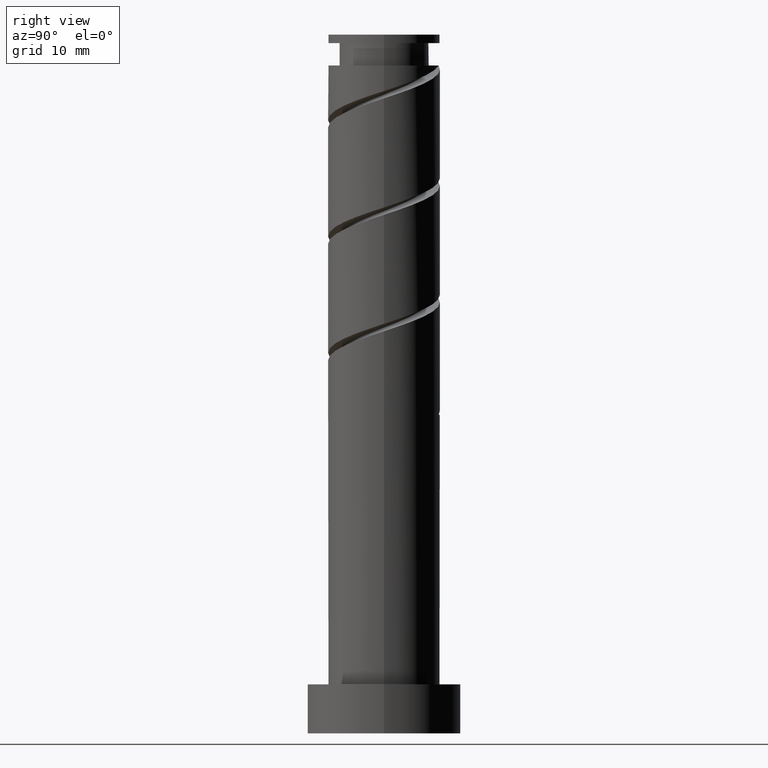
[diagram: clean part render]
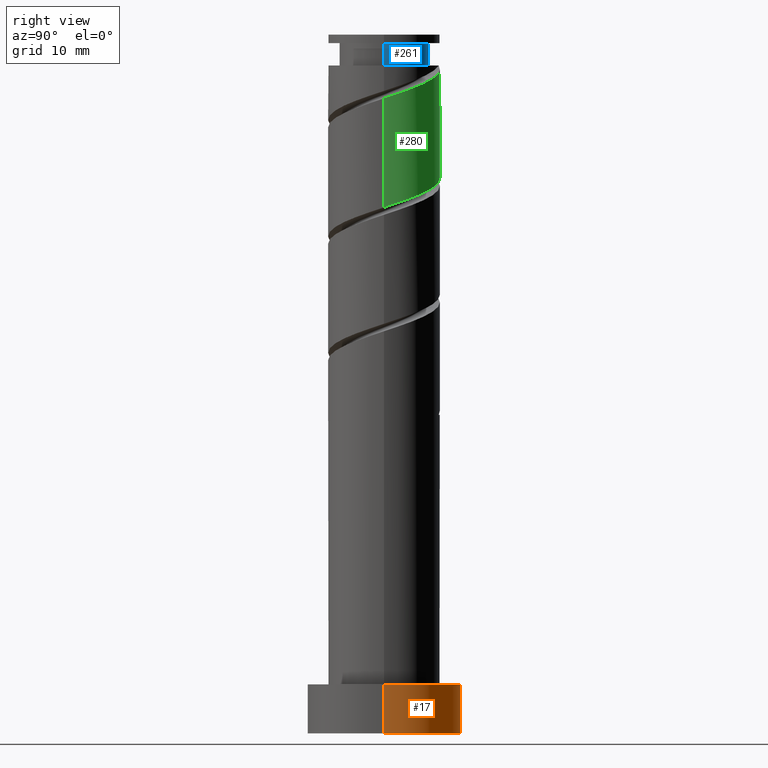
[diagram: same view with three faces highlighted in distinct colors, each labeled with its STEP entity id]
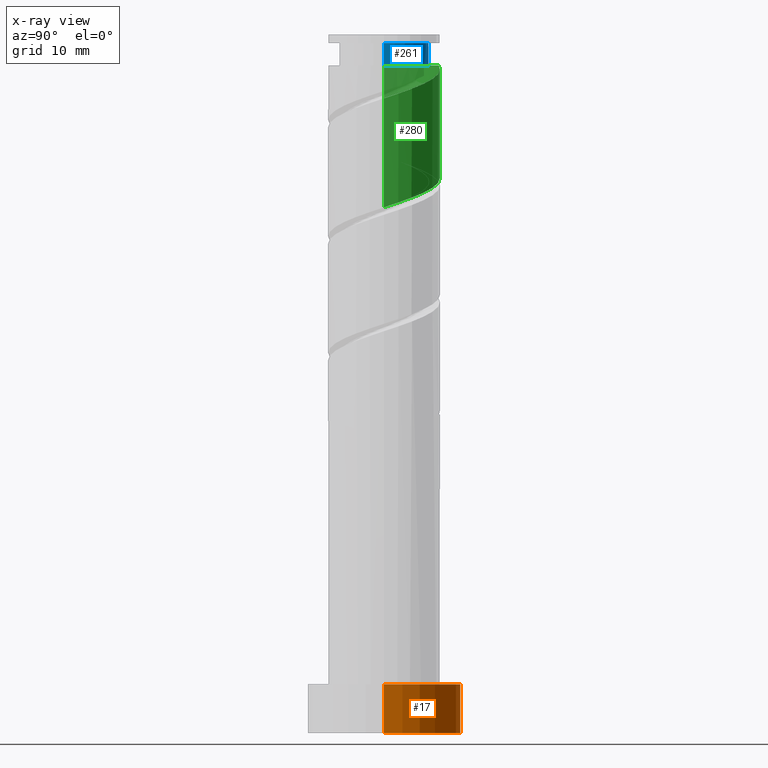
[diagram: x-ray of the same camera — body ghosted, the three highlighted faces saturated]
A machine part, right view with three faces highlighted in distinct colors.
The next image is the same camera in x-ray (body ghosted, the three faces saturated) — at least one of them is partly hidden behind the body in this view.
Their STEP definitions:

[orange] entity #17 — the highlighted cylindrical surface (partial cylindrical patch) has radius 11 mm, axis along (-0, -0, -1).
#17 = ADVANCED_FACE ( 'NONE', ( #644 ), #63, .T. ) ;
#25 = CARTESIAN_POINT ( 'NONE',  ( -11.00000000000000000, 0.000000000000000000, 7.000000000000000000 ) ) ;
#32 = CARTESIAN_POINT ( 'NONE',  ( 11.00000000000000000, 1.347111479062088405E-15, 7.000000000000000000 ) ) ;
#50 = CIRCLE ( 'NONE', #167, 11.00000000000000000 ) ;
#63 = CYLINDRICAL_SURFACE ( 'NONE', #430, 11.00000000000000000 ) ;
#167 = AXIS2_PLACEMENT_3D ( 'NONE', #703, #466, #609 ) ;
#172 = EDGE_CURVE ( 'NONE', #273, #281, #1345, .T. ) ;
#190 = DIRECTION ( 'NONE',  ( -1.000000000000000000, 0.000000000000000000, 0.000000000000000000 ) ) ;
#218 = DIRECTION ( 'NONE',  ( 1.000000000000000000, 0.000000000000000000, 0.000000000000000000 ) ) ;
#231 = DIRECTION ( 'NONE',  ( -0.000000000000000000, -0.000000000000000000, -1.000000000000000000 ) ) ;
#273 = VERTEX_POINT ( 'NONE', #1039 ) ;
#281 = VERTEX_POINT ( 'NONE', #25 ) ;
#299 = EDGE_CURVE ( 'NONE', #884, #564, #50, .T. ) ;
#304 = CARTESIAN_POINT ( 'NONE',  ( 0.000000000000000000, 0.000000000000000000, 7.000000000000000000 ) ) ;
#328 = EDGE_CURVE ( 'NONE', #273, #884, #1052, .T. ) ;
#430 = AXIS2_PLACEMENT_3D ( 'NONE', #304, #522, #190 ) ;
#466 = DIRECTION ( 'NONE',  ( 0.000000000000000000, 0.000000000000000000, 1.000000000000000000 ) ) ;
#522 = DIRECTION ( 'NONE',  ( -0.000000000000000000, -0.000000000000000000, -1.000000000000000000 ) ) ;
#556 = ORIENTED_EDGE ( 'NONE', *, *, #299, .T. ) ;
#561 = DIRECTION ( 'NONE',  ( 0.000000000000000000, 0.000000000000000000, 1.000000000000000000 ) ) ;
#564 = VERTEX_POINT ( 'NONE', #627 ) ;
#609 = DIRECTION ( 'NONE',  ( 1.000000000000000000, 0.000000000000000000, 0.000000000000000000 ) ) ;
#627 = CARTESIAN_POINT ( 'NONE',  ( -11.00000000000000000, 0.000000000000000000, 0.000000000000000000 ) ) ;
#644 = FACE_OUTER_BOUND ( 'NONE', #921, .T. ) ;
#703 = CARTESIAN_POINT ( 'NONE',  ( 0.000000000000000000, 0.000000000000000000, 0.000000000000000000 ) ) ;
#720 = ORIENTED_EDGE ( 'NONE', *, *, #328, .T. ) ;
#738 = CARTESIAN_POINT ( 'NONE',  ( 11.00000000000000000, 1.347111479062088405E-15, 0.000000000000000000 ) ) ;
#864 = AXIS2_PLACEMENT_3D ( 'NONE', #1242, #561, #218 ) ;
#884 = VERTEX_POINT ( 'NONE', #738 ) ;
#921 = EDGE_LOOP ( 'NONE', ( #1387, #720, #556, #1175 ) ) ;
#1039 = CARTESIAN_POINT ( 'NONE',  ( 11.00000000000000000, 1.347111479062088405E-15, 7.000000000000000000 ) ) ;
#1052 = LINE ( 'NONE', #32, #1294 ) ;
#1148 = EDGE_CURVE ( 'NONE', #281, #564, #1238, .T. ) ;
#1175 = ORIENTED_EDGE ( 'NONE', *, *, #1148, .F. ) ;
#1238 = LINE ( 'NONE', #1319, #1316 ) ;
#1242 = CARTESIAN_POINT ( 'NONE',  ( 0.000000000000000000, 0.000000000000000000, 7.000000000000000000 ) ) ;
#1294 = VECTOR ( 'NONE', #231, 1000.000000000000000 ) ;
#1316 = VECTOR ( 'NONE', #1336, 1000.000000000000000 ) ;
#1319 = CARTESIAN_POINT ( 'NONE',  ( -11.00000000000000000, 0.000000000000000000, 7.000000000000000000 ) ) ;
#1336 = DIRECTION ( 'NONE',  ( -0.000000000000000000, -0.000000000000000000, -1.000000000000000000 ) ) ;
#1345 = CIRCLE ( 'NONE', #864, 11.00000000000000000 ) ;
#1387 = ORIENTED_EDGE ( 'NONE', *, *, #172, .F. ) ;

[blue] entity #261 — the highlighted cylindrical surface (partial cylindrical patch) has radius 6.4 mm, axis along (-0, -0, -1).
#29 = LINE ( 'NONE', #1207, #140 ) ;
#70 = ORIENTED_EDGE ( 'NONE', *, *, #1413, .T. ) ;
#140 = VECTOR ( 'NONE', #871, 1000.000000000000000 ) ;
#157 = CARTESIAN_POINT ( 'NONE',  ( 6.400000000000001243, 7.837739514543061906E-16, 98.78872399348242084 ) ) ;
#169 = ORIENTED_EDGE ( 'NONE', *, *, #1171, .T. ) ;
#185 = CARTESIAN_POINT ( 'NONE',  ( 0.000000000000000000, 0.000000000000000000, 98.78872399348242084 ) ) ;
#214 = AXIS2_PLACEMENT_3D ( 'NONE', #1139, #355, #828 ) ;
#234 = CIRCLE ( 'NONE', #623, 6.400000000000001243 ) ;
#261 = ADVANCED_FACE ( 'NONE', ( #1471 ), #795, .T. ) ;
#298 = CARTESIAN_POINT ( 'NONE',  ( -6.400000000000001243, 0.000000000000000000, 95.58872399348241800 ) ) ;
#345 = CARTESIAN_POINT ( 'NONE',  ( 0.000000000000000000, 0.000000000000000000, 95.58872399348241800 ) ) ;
#355 = DIRECTION ( 'NONE',  ( -0.000000000000000000, -0.000000000000000000, -1.000000000000000000 ) ) ;
#371 = CIRCLE ( 'NONE', #1044, 6.400000000000001243 ) ;
#383 = DIRECTION ( 'NONE',  ( -0.000000000000000000, -0.000000000000000000, -1.000000000000000000 ) ) ;
#426 = LINE ( 'NONE', #1016, #1479 ) ;
#433 = EDGE_LOOP ( 'NONE', ( #169, #70, #1198, #953, #1013 ) ) ;
#475 = CIRCLE ( 'NONE', #1320, 6.400000000000001243 ) ;
#487 = CARTESIAN_POINT ( 'NONE',  ( 0.000000000000000000, 0.000000000000000000, 95.58872399348241800 ) ) ;
#501 = CARTESIAN_POINT ( 'NONE',  ( 6.400000000000001243, 7.837739514543061906E-16, 95.58872399348241800 ) ) ;
#590 = VERTEX_POINT ( 'NONE', #157 ) ;
#623 = AXIS2_PLACEMENT_3D ( 'NONE', #185, #1102, #639 ) ;
#639 = DIRECTION ( 'NONE',  ( -1.000000000000000000, 0.000000000000000000, 0.000000000000000000 ) ) ;
#698 = VERTEX_POINT ( 'NONE', #1224 ) ;
#795 = CYLINDRICAL_SURFACE ( 'NONE', #214, 6.400000000000001243 ) ;
#799 = EDGE_CURVE ( 'NONE', #698, #1161, #426, .T. ) ;
#819 = DIRECTION ( 'NONE',  ( -0.000000000000000000, -0.000000000000000000, -1.000000000000000000 ) ) ;
#828 = DIRECTION ( 'NONE',  ( -1.000000000000000000, 0.000000000000000000, 0.000000000000000000 ) ) ;
#871 = DIRECTION ( 'NONE',  ( -0.000000000000000000, -0.000000000000000000, -1.000000000000000000 ) ) ;
#917 = CARTESIAN_POINT ( 'NONE',  ( -1.613292832658430913E-14, 6.400000000000001243, 95.58872399348240378 ) ) ;
#929 = EDGE_CURVE ( 'NONE', #1161, #1368, #371, .T. ) ;
#953 = ORIENTED_EDGE ( 'NONE', *, *, #929, .F. ) ;
#1013 = ORIENTED_EDGE ( 'NONE', *, *, #799, .F. ) ;
#1016 = CARTESIAN_POINT ( 'NONE',  ( -6.400000000000001243, 0.000000000000000000, 0.000000000000000000 ) ) ;
#1022 = VERTEX_POINT ( 'NONE', #501 ) ;
#1044 = AXIS2_PLACEMENT_3D ( 'NONE', #487, #383, #1080 ) ;
#1080 = DIRECTION ( 'NONE',  ( -1.000000000000000000, 0.000000000000000000, 0.000000000000000000 ) ) ;
#1102 = DIRECTION ( 'NONE',  ( -0.000000000000000000, -0.000000000000000000, -1.000000000000000000 ) ) ;
#1139 = CARTESIAN_POINT ( 'NONE',  ( 0.000000000000000000, 0.000000000000000000, 0.000000000000000000 ) ) ;
#1161 = VERTEX_POINT ( 'NONE', #298 ) ;
#1171 = EDGE_CURVE ( 'NONE', #698, #590, #234, .T. ) ;
#1198 = ORIENTED_EDGE ( 'NONE', *, *, #1299, .F. ) ;
#1207 = CARTESIAN_POINT ( 'NONE',  ( 6.400000000000001243, 7.837739514543061906E-16, 0.000000000000000000 ) ) ;
#1224 = CARTESIAN_POINT ( 'NONE',  ( -6.400000000000001243, 0.000000000000000000, 98.78872399348242084 ) ) ;
#1248 = DIRECTION ( 'NONE',  ( -0.000000000000000000, -0.000000000000000000, -1.000000000000000000 ) ) ;
#1289 = DIRECTION ( 'NONE',  ( -1.000000000000000000, 0.000000000000000000, 0.000000000000000000 ) ) ;
#1299 = EDGE_CURVE ( 'NONE', #1368, #1022, #475, .T. ) ;
#1320 = AXIS2_PLACEMENT_3D ( 'NONE', #345, #1248, #1289 ) ;
#1368 = VERTEX_POINT ( 'NONE', #917 ) ;
#1413 = EDGE_CURVE ( 'NONE', #590, #1022, #29, .T. ) ;
#1471 = FACE_OUTER_BOUND ( 'NONE', #433, .T. ) ;
#1479 = VECTOR ( 'NONE', #819, 1000.000000000000000 ) ;

[green] entity #280 — the highlighted cylindrical surface (partial cylindrical patch) has radius 8 mm, axis along (-0, -0, -1).
#10 = DIRECTION ( 'NONE',  ( -1.000000000000000000, 0.000000000000000000, 0.000000000000000000 ) ) ;
#34 = EDGE_CURVE ( 'NONE', #1403, #679, #229, .T. ) ;
#73 = LINE ( 'NONE', #614, #671 ) ;
#78 = CARTESIAN_POINT ( 'NONE',  ( 8.000000000000012434, 4.944797927021814788E-15, 90.89120243849369274 ) ) ;
#81 = EDGE_CURVE ( 'NONE', #124, #679, #554, .T. ) ;
#110 = EDGE_CURVE ( 'NONE', #1403, #1317, #1366, .T. ) ;
#117 = CARTESIAN_POINT ( 'NONE',  ( -8.000000000000001776, 0.000000000000000000, 95.58872399348241800 ) ) ;
#122 = CARTESIAN_POINT ( 'NONE',  ( -7.997337192023797670, 0.2063924346310208602, 83.55168695644539412 ) ) ;
#124 = VERTEX_POINT ( 'NONE', #117 ) ;
#142 = AXIS2_PLACEMENT_3D ( 'NONE', #1285, #1272, #10 ) ;
#143 = CARTESIAN_POINT ( 'NONE',  ( -8.000000000000000000, 0.1032133946561672733, 83.58556150787214278 ) ) ;
#151 = FACE_OUTER_BOUND ( 'NONE', #859, .T. ) ;
#177 =( BOUNDED_CURVE ( )  B_SPLINE_CURVE ( 2, ( #1173, #143, #122, #836, #1291, #959, #1060, #726, #1180, #1416, #1385, #1263, #696, #1152, #580, #867, #527, #506, #973, #849, #1424 ),
 .UNSPECIFIED., .F., .T. ) 
 B_SPLINE_CURVE_WITH_KNOTS ( ( 3, 2, 2, 2, 2, 2, 2, 2, 2, 2, 3 ),
 ( 0.4295248053855290626, 0.4305555555555555802, 0.4444444444444444198, 0.4583333333333333148, 0.4722222222222222099, 0.4861111111111111049, 0.5000000000000000000, 0.5138888888888888395, 0.5277777777777777901, 0.5416666666666666297, 0.5545248053855290626 ),
 .UNSPECIFIED. ) 
 CURVE ( )  GEOMETRIC_REPRESENTATION_ITEM ( )  RATIONAL_B_SPLINE_CURVE ( ( 0.9071930855141199235, 0.9080659294509676460, 0.9090909090909077284, 0.8952797754656424134, 0.9090909090909077284, 0.8952797754656424134, 0.9090909090909077284, 0.8952797754656424134, 0.9090909090909077284, 0.8952797754656424134, 0.9090909090909077284, 0.8952797754656424134, 0.9090909090909077284, 0.8952797754656424134, 0.9090909090909077284, 0.8952797754656424134, 0.9090909090909077284, 0.8952797754656424134, 0.9090909090909077284, 0.8963047551055824957, 0.9071930855141200345 ) ) 
 REPRESENTATION_ITEM ( '' )  );
#229 =( BOUNDED_CURVE ( )  B_SPLINE_CURVE ( 2, ( #78, #988, #409, #869, #537, #1340, #773, #295, #758, #1099, #1212, #530, #1426 ),
 .UNSPECIFIED., .F., .T. ) 
 B_SPLINE_CURVE_WITH_KNOTS ( ( 3, 2, 2, 2, 2, 2, 3 ),
 ( 0.6795248053855291737, 0.6805555555555555802, 0.6944444444444444198, 0.7083333333333331483, 0.7222222222222220989, 0.7361111111111109384, 0.7499999999999997780 ),
 .UNSPECIFIED. ) 
 CURVE ( )  GEOMETRIC_REPRESENTATION_ITEM ( )  RATIONAL_B_SPLINE_CURVE ( ( 0.9071930855141263628, 0.9080659294509738633, 0.9090909090909138346, 0.8952797754656482976, 0.9090909090909138346, 0.8952797754656482976, 0.9090909090909138346, 0.8952797754656482976, 0.9090909090909138346, 0.8952797754656482976, 0.9090909090909138346, 0.8952797754656485196, 0.9090909090909136125 ) ) 
 REPRESENTATION_ITEM ( '' )  );
#280 = ADVANCED_FACE ( 'NONE', ( #151 ), #1400, .T. ) ;
#288 = ORIENTED_EDGE ( 'NONE', *, *, #34, .F. ) ;
#295 = CARTESIAN_POINT ( 'NONE',  ( 5.059346318738406900, 6.355537104849376284, 93.27390917866760844 ) ) ;
#341 = CARTESIAN_POINT ( 'NONE',  ( 8.000000000000000000, 9.797174393178823685E-16, 100.0000000000000000 ) ) ;
#409 = CARTESIAN_POINT ( 'NONE',  ( 7.997337192023810104, 0.2063924346310197222, 90.95909436385281310 ) ) ;
#446 = EDGE_CURVE ( 'NONE', #816, #1317, #177, .T. ) ;
#493 = CARTESIAN_POINT ( 'NONE',  ( 8.000000000000000000, 2.689013978440883927E-16, 75.28624554847118588 ) ) ;
#505 = AXIS2_PLACEMENT_3D ( 'NONE', #508, #911, #657 ) ;
#506 = CARTESIAN_POINT ( 'NONE',  ( 7.137528483847234817, 3.878856043515694019, 76.60724251200093704 ) ) ;
#508 = CARTESIAN_POINT ( 'NONE',  ( 0.000000000000000000, 0.000000000000000000, 95.58872399348241800 ) ) ;
#527 = CARTESIAN_POINT ( 'NONE',  ( 6.258982215412419947, 4.982483479867344300, 77.07020547496389895 ) ) ;
#530 = CARTESIAN_POINT ( 'NONE',  ( -0.2095763706162031559, 8.120709009004592360, 95.12576103051947030 ) ) ;
#537 = CARTESIAN_POINT ( 'NONE',  ( 7.444448375207636914, 2.929195860448488009, 91.88502028977872271 ) ) ;
#554 = CIRCLE ( 'NONE', #505, 8.000000000000001776 ) ;
#580 = CARTESIAN_POINT ( 'NONE',  ( 4.177409687551286055, 6.822700953607204077, 77.99613140088985119 ) ) ;
#614 = CARTESIAN_POINT ( 'NONE',  ( -8.000000000000000000, 0.000000000000000000, 100.0000000000000000 ) ) ;
#631 = DIRECTION ( 'NONE',  ( -0.000000000000000000, -0.000000000000000000, -1.000000000000000000 ) ) ;
#657 = DIRECTION ( 'NONE',  ( -1.000000000000000000, 0.000000000000000000, 0.000000000000000000 ) ) ;
#671 = VECTOR ( 'NONE', #631, 1000.000000000000000 ) ;
#679 = VERTEX_POINT ( 'NONE', #1050 ) ;
#687 = CARTESIAN_POINT ( 'NONE',  ( 8.000000000000012434, 4.944797927021814788E-15, 90.89120243849369274 ) ) ;
#696 = CARTESIAN_POINT ( 'NONE',  ( 1.591979899370594476, 7.839999999999999858, 78.92205732681576080 ) ) ;
#726 = CARTESIAN_POINT ( 'NONE',  ( -5.059346318738396242, 6.355537104849367402, 81.23687214163058457 ) ) ;
#758 = CARTESIAN_POINT ( 'NONE',  ( 3.819927504472525381, 7.029093388238235818, 93.73687214163057035 ) ) ;
#773 = CARTESIAN_POINT ( 'NONE',  ( 5.993649215984713230, 5.298695035169134648, 92.81094621570464653 ) ) ;
#780 = DIRECTION ( 'NONE',  ( -0.000000000000000000, -0.000000000000000000, -1.000000000000000000 ) ) ;
#816 = VERTEX_POINT ( 'NONE', #1231 ) ;
#836 = CARTESIAN_POINT ( 'NONE',  ( -7.960944637184240058, 1.616538755408090555, 83.08872399348240378 ) ) ;
#849 = CARTESIAN_POINT ( 'NONE',  ( 7.999999999999998224, 1.304434974563647875, 75.71616506083681486 ) ) ;
#859 = EDGE_LOOP ( 'NONE', ( #288, #1182, #1333, #1142, #1237 ) ) ;
#867 = CARTESIAN_POINT ( 'NONE',  ( 5.380435946977608630, 6.086110916218995470, 77.53316843792684665 ) ) ;
#869 = CARTESIAN_POINT ( 'NONE',  ( 7.960944637184254269, 1.616538755408089889, 91.42205732681574659 ) ) ;
#893 = VECTOR ( 'NONE', #780, 1000.000000000000000 ) ;
#911 = DIRECTION ( 'NONE',  ( -0.000000000000000000, -0.000000000000000000, -1.000000000000000000 ) ) ;
#959 = CARTESIAN_POINT ( 'NONE',  ( -6.927952113231005349, 4.241852965488886795, 82.16279806755646575 ) ) ;
#973 = CARTESIAN_POINT ( 'NONE',  ( 7.585629115355295049, 2.541304964830873647, 76.14427954903800355 ) ) ;
#988 = CARTESIAN_POINT ( 'NONE',  ( 8.000000000000012434, 0.1032133946561763632, 90.92521981242605023 ) ) ;
#1050 = CARTESIAN_POINT ( 'NONE',  ( -1.591979899370592255, 7.840000000000014957, 95.58872399348246063 ) ) ;
#1060 = CARTESIAN_POINT ( 'NONE',  ( -5.993649215984703460, 5.298695035169128431, 81.69983510459353226 ) ) ;
#1099 = CARTESIAN_POINT ( 'NONE',  ( 2.580508690206644751, 7.702649671627096239, 94.19983510459356069 ) ) ;
#1142 = ORIENTED_EDGE ( 'NONE', *, *, #1439, .F. ) ;
#1152 = CARTESIAN_POINT ( 'NONE',  ( 2.974383428124958151, 7.559290990995414461, 78.45909436385279889 ) ) ;
#1173 = CARTESIAN_POINT ( 'NONE',  ( -8.000000000000001776, -3.928948201833070172E-15, 83.61957888180452869 ) ) ;
#1180 = CARTESIAN_POINT ( 'NONE',  ( -3.819927504472515167, 7.029093388238227824, 80.77390917866760844 ) ) ;
#1182 = ORIENTED_EDGE ( 'NONE', *, *, #110, .T. ) ;
#1212 = CARTESIAN_POINT ( 'NONE',  ( 1.185466159795213414, 7.911679340315846076, 94.66279806755649417 ) ) ;
#1231 = CARTESIAN_POINT ( 'NONE',  ( -8.000000000000001776, -3.928948201833070172E-15, 83.61957888180452869 ) ) ;
#1237 = ORIENTED_EDGE ( 'NONE', *, *, #81, .T. ) ;
#1263 = CARTESIAN_POINT ( 'NONE',  ( 0.2095763706162271367, 8.120709009004581702, 79.38502028977870850 ) ) ;
#1272 = DIRECTION ( 'NONE',  ( -0.000000000000000000, -0.000000000000000000, -1.000000000000000000 ) ) ;
#1285 = CARTESIAN_POINT ( 'NONE',  ( 0.000000000000000000, 0.000000000000000000, 100.0000000000000000 ) ) ;
#1291 = CARTESIAN_POINT ( 'NONE',  ( -7.444448375207623592, 2.929195860448489341, 82.62576103051944187 ) ) ;
#1317 = VERTEX_POINT ( 'NONE', #493 ) ;
#1333 = ORIENTED_EDGE ( 'NONE', *, *, #446, .F. ) ;
#1340 = CARTESIAN_POINT ( 'NONE',  ( 6.927952113231022224, 4.241852965488886795, 92.34798325274169883 ) ) ;
#1366 = LINE ( 'NONE', #341, #893 ) ;
#1385 = CARTESIAN_POINT ( 'NONE',  ( -1.185466159795203644, 7.911679340315834530, 79.84798325274168462 ) ) ;
#1400 = CYLINDRICAL_SURFACE ( 'NONE', #142, 8.000000000000000000 ) ;
#1403 = VERTEX_POINT ( 'NONE', #687 ) ;
#1416 = CARTESIAN_POINT ( 'NONE',  ( -2.580508690206634981, 7.702649671627087358, 80.31094621570460390 ) ) ;
#1424 = CARTESIAN_POINT ( 'NONE',  ( 8.000000000000000000, 2.689013978440883927E-16, 75.28624554847118588 ) ) ;
#1426 = CARTESIAN_POINT ( 'NONE',  ( -1.591979899370592255, 7.840000000000014957, 95.58872399348246063 ) ) ;
#1439 = EDGE_CURVE ( 'NONE', #124, #816, #73, .T. ) ;